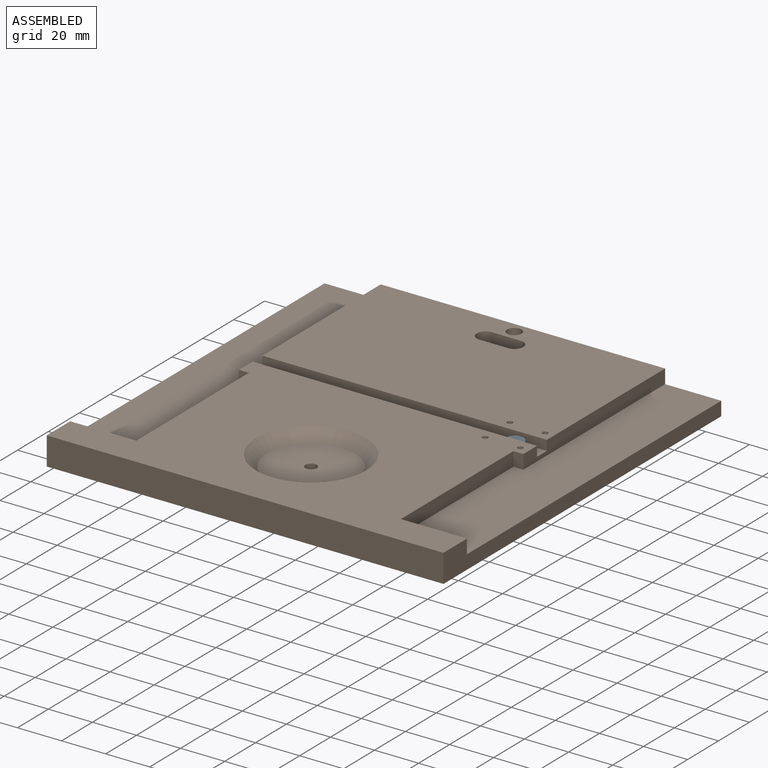
[diagram: assembled view]
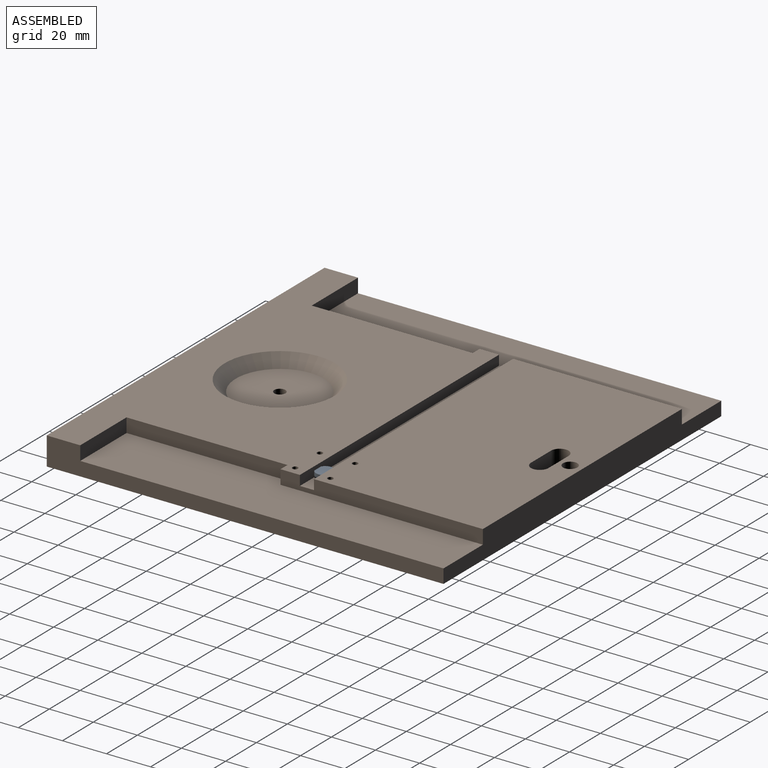
[diagram: assembled view, second angle]
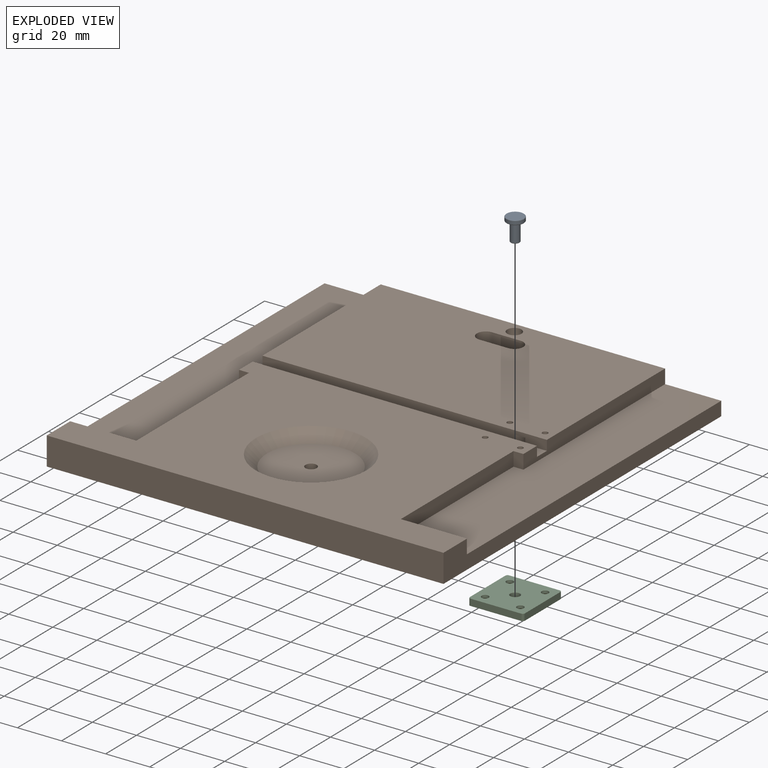
[diagram: exploded view]
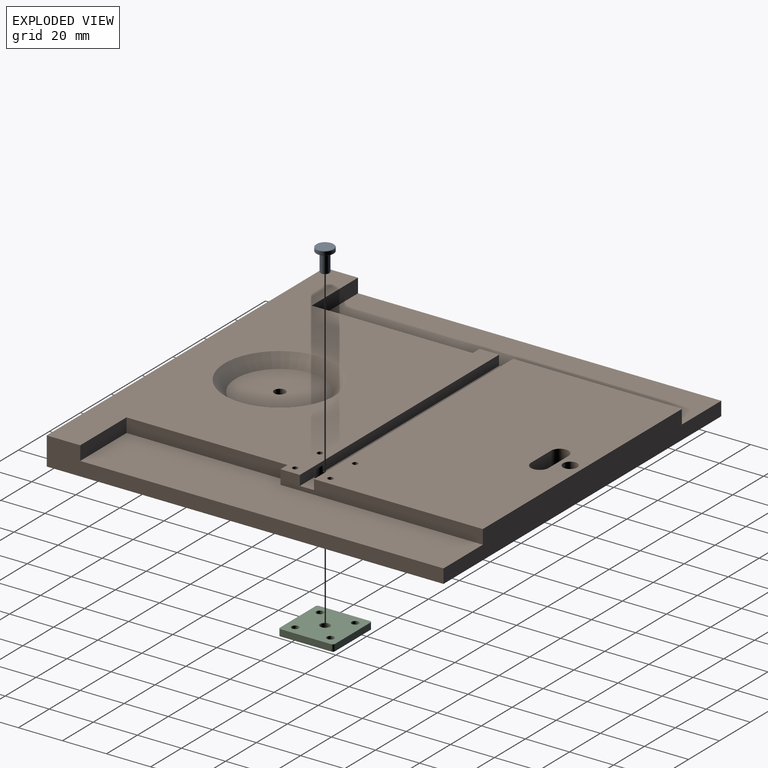
[diagram: exploded view, second angle]
ASSEMBLY  parts=3 mates=2
PART A: 8 faces, bbox 8x8x10.5 mm
  f0: cylinder r=4mm len=8mm, axis (0,0,-1), area 40.2mm2, adj f5,f6
  f1: plane 7.6x7.6mm, normal (0,0,1), area 32.2mm2, adj f3,f6
  f2: plane 7.6x7.6mm, normal (0,0,-1), area 45.4mm2, adj f5
  f3: cylinder r=2.05mm len=8.3mm, axis (0,0,-1), area 106.9mm2, adj f1,f7
  f4: plane 3.7x3.7mm, normal (0,0,1), area 10.8mm2, adj f7
  f5: cone r=4mm half-angle=45deg, axis (0,0,1), area 6.9mm2, adj f0,f2
  f6: cone r=3.8mm half-angle=45deg, axis (0,0,-1), area 6.9mm2, adj f0,f1
  f7: cone r=1.85mm half-angle=45deg, axis (0,0,-1), area 3.5mm2, adj f3,f4
PART B: 47 faces, bbox 180x180x12.8 mm
  f0: plane 114.8x6.4mm, normal (0,0,1), area 726mm2, adj f4,f10,f26,f27
  f1: plane 180x12.75mm, normal (-1,0,0), area 1240.3mm2, adj f2,f3,f5,f8,f29,f46
  f2: plane 180x12.75mm, normal (0,1,0), area 1968.6mm2, adj f1,f3,f6,f9,f10,f11,f45,f46
  f3: plane 180x180mm, normal (0,0,-1), area 31491mm2, adj f1,f2,f8,f9,f16,f17,f18,f19
  f4: cylinder r=4.05mm len=8.1mm, axis (0,0,-1), area 150.1mm2, adj f0,f7,f26,f27,f30,f31,f36
  f5: plane 180x97mm, normal (0,0,1), area 10657.9mm2, adj f1,f8,f9,f10,f11,f12,f13,f14
  f6: plane 129x76.6mm, normal (0,0,1), area 9684.1mm2, adj f2,f10,f11,f16,f17,f18,f19,f20
  f7: plane 9.8x6.4mm, normal (0,0,1), area 54mm2, adj f4,f11,f26,f27
  f8: plane 180x12.75mm, normal (0,-1,0), area 2295mm2, adj f1,f3,f5,f9
  f9: plane 180x12.75mm, normal (1,0,0), area 1240.3mm2, adj f2,f3,f5,f8,f28,f45
  f10: plane 91.8x6.4mm, normal (-1,0,0), area 558.7mm2, adj f0,f2,f5,f6,f14,f26,f27,f46
  f11: plane 91.8x6.4mm, normal (1,0,0), area 558.7mm2, adj f2,f5,f6,f7,f13,f26,f27,f45
  f12: plane 73x6.4mm, normal (1,0,0), area 467.2mm2, adj f5,f13,f28,f45
  f13: plane 6.4x4.5mm, normal (0,-1,0), area 28.8mm2, adj f5,f11,f12,f45
  f14: plane 6.4x4.5mm, normal (0,-1,0), area 28.8mm2, adj f5,f10,f15,f46
  f15: plane 73x6.4mm, normal (-1,0,0), area 467.2mm2, adj f5,f14,f29,f46
  f16: cylinder r=3.25mm len=12.75mm, axis (0,0,1), area 260.4mm2, adj f3,f6
  f17: plane 13x12.75mm, normal (0,-1,0), area 165.8mm2, adj f3,f6,f18,f20
  f18: cylinder r=4mm len=12.75mm, axis (0,0,1), area 160.2mm2, adj f3,f6,f17,f19
  f19: plane 13x12.75mm, normal (0,1,0), area 165.8mm2, adj f3,f6,f18,f20
  f20: cylinder r=4mm len=12.75mm, axis (0,0,1), area 160.2mm2, adj f3,f6,f17,f19
  f21: plane 40x40mm, normal (0,0,1), area 1236.2mm2, adj f22,f25
  f22: cone r=20mm half-angle=45deg, axis (0,0,1), area 999.6mm2, adj f5,f21
  f23: cylinder r=3.95mm len=7.9mm, axis (0,0,-1), area 136.5mm2, adj f3,f24
  f24: plane 7.9x7.9mm, normal (0,0,-1), area 28.5mm2, adj f23,f25
  f25: cylinder r=2.55mm len=5.11mm, axis (0,0,1), area 36.1mm2, adj f21,f24
  f26: plane 129x4.5mm, normal (0,-1,0), area 568.4mm2, adj f0,f4,f6,f7,f10,f11,f31
  f27: plane 129x4.5mm, normal (0,1,0), area 565.5mm2, adj f0,f4,f5,f7,f10,f11,f30
  f28: plane 30x6.4mm, normal (0,1,0), area 192mm2, adj f5,f9,f12,f45
  f29: plane 30x6.4mm, normal (0,1,0), area 192mm2, adj f1,f5,f15,f46
  f30: plane 5.44x1.05mm, normal (0,0,-1), area 3.9mm2, adj f4,f27
  f31: plane 4.4x0.65mm, normal (0,0,-1), area 1.9mm2, adj f4,f26
  f32: plane 22x3.5mm, normal (0,-1,0), area 77mm2, adj f3,f36,f41,f44
  f33: plane 22x3.5mm, normal (-1,0,0), area 77mm2, adj f3,f36,f41,f42
  f34: plane 22x3.5mm, normal (0,1,0), area 77mm2, adj f3,f36,f42,f43
  f35: plane 22x3.5mm, normal (1,0,0), area 77mm2, adj f3,f36,f43,f44
  f36: plane 26x26mm, normal (0,0,-1), area 601.4mm2, adj f4,f32,f33,f34,f35,f37,f38,f39
  f37: cylinder r=1.25mm len=9.25mm, axis (0,0,-1), area 72.6mm2, adj f6,f36
  f38: cylinder r=1.25mm len=9.25mm, axis (0,0,-1), area 72.6mm2, adj f6,f36
  f39: cylinder r=1.25mm len=9.25mm, axis (0,0,-1), area 72.6mm2, adj f5,f36
  f40: cylinder r=1.25mm len=9.25mm, axis (0,0,-1), area 72.6mm2, adj f5,f36
  f41: cylinder r=2mm len=3.5mm, axis (0,0,-1), area 11mm2, adj f3,f32,f33,f36
  f42: cylinder r=2mm len=3.5mm, axis (0,0,1), area 11mm2, adj f3,f33,f34,f36
  f43: cylinder r=2mm len=3.5mm, axis (0,0,-1), area 11mm2, adj f3,f34,f35,f36
  f44: cylinder r=2mm len=3.5mm, axis (0,0,1), area 11mm2, adj f3,f32,f35,f36
  f45: plane 164.8x30mm, normal (0,0,1), area 4530.9mm2, adj f2,f9,f11,f12,f13,f28
  f46: plane 164.8x30mm, normal (0,0,1), area 4530.9mm2, adj f1,f2,f10,f14,f15,f29
PART C: 21 faces, bbox 25x25x3 mm
  f0: plane 23x3mm, normal (0,-1,0), area 69mm2, adj f5,f6,f15,f18
  f1: plane 23x3mm, normal (1,0,0), area 69mm2, adj f5,f6,f15,f16
  f2: plane 23x3mm, normal (0,1,0), area 69mm2, adj f5,f6,f16,f17
  f3: cylinder r=2.15mm len=4.3mm, axis (0,0,-1), area 35.1mm2, adj f19,f20
  f4: plane 23x3mm, normal (-1,0,0), area 69mm2, adj f5,f6,f17,f18
  f5: plane 25x25mm, normal (0,0,1), area 574.6mm2, adj f0,f1,f2,f4,f7,f9,f11,f13
  f6: plane 25x25mm, normal (0,0,-1), area 464.9mm2, adj f0,f1,f2,f4,f8,f10,f12,f14
  f7: cylinder r=1.6mm len=3.2mm, axis (0,0,-1), area 12.5mm2, adj f5,f8
  f8: cone r=1.6mm half-angle=45deg, axis (0,0,-1), area 38.8mm2, adj f6,f7
  f9: cylinder r=1.6mm len=3.2mm, axis (0,0,-1), area 12.5mm2, adj f5,f10
  f10: cone r=1.6mm half-angle=45deg, axis (0,0,-1), area 38.8mm2, adj f6,f9
  f11: cylinder r=1.6mm len=3.2mm, axis (0,0,-1), area 12.5mm2, adj f5,f12
  f12: cone r=1.6mm half-angle=45deg, axis (0,0,-1), area 38.8mm2, adj f6,f11
  f13: cylinder r=1.6mm len=3.2mm, axis (0,0,-1), area 12.5mm2, adj f5,f14
  f14: cone r=1.6mm half-angle=45deg, axis (0,0,-1), area 38.8mm2, adj f6,f13
  f15: cylinder r=1mm len=3mm, axis (0,0,1), area 4.7mm2, adj f0,f1,f5,f6
  f16: cylinder r=1mm len=3mm, axis (0,0,-1), area 4.7mm2, adj f1,f2,f5,f6
  f17: cylinder r=1mm len=3mm, axis (0,0,1), area 4.7mm2, adj f2,f4,f5,f6
  f18: cylinder r=1mm len=3mm, axis (0,0,-1), area 4.7mm2, adj f0,f4,f5,f6
  f19: cone r=2.15mm half-angle=45deg, axis (0,0,1), area 4mm2, adj f3,f5
  f20: cone r=2.35mm half-angle=45deg, axis (0,0,-1), area 4mm2, adj f3,f6
PLACE A rot(axis=(0,1,0),180deg) t=(52.74,10.02,4.29)mm
PLACE B t=(0.24,0.02,-6.56)mm
PLACE C t=(52.69,10.07,-6.06)mm
MATE slider A.f0 <-> B.f4  axis (0,0,1) through (52.74,10.02,4.29)mm
MATE fastened C.f13 <-> B.f39  axis (0,0,1) through (44.69,2.07,-3.06)mm
